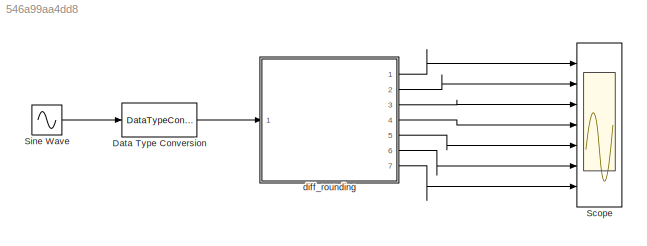
MODEL slx_546a99aa4dd8
KIND model
CONFIG AbsTol = auto
CONFIG FixedStep = auto
CONFIG MaxStep = auto
CONFIG MinStep = auto
CONFIG RelTol = 1e-3
CONFIG SampleTimeConstraint = Unconstrained
CONFIG Solver = FixedStepDiscrete
CONFIG SolverMode = SingleTasking
CONFIG SolverName = FixedStepDiscrete
CONFIG StartTime = 0.0
CONFIG StopTime = 10
BLOCK [DataTypeConversion] Data Type Conversion
  OutDataTypeStr = fixdt(1,16,12)
  RndMeth = Floor
  SaturateOnIntegerOverflow = off
BLOCK [Scope] Scope
  NumInputPorts = 7
  Ports = [7]
  ScopeSpecificationString = Simulink.scopes.TimeScopeBlockCfg('CurrentConfiguration', extmgr.ConfigurationSet(extmgr.Configuration('Core','General UI',true),extmgr.Configuration('Core','Source UI',true),extmgr.Configuration('Sources','WiredSimulink',true,'DataLoggingSaveFormat','StructureWithTime','DataLoggingDecimation','1','DataLoggingDecimateData',true),extmgr.Configuration('Visuals','Time Domain',true,'SerializedDisplays...<+6461ch>
BLOCK [Sin] Sine Wave
  Frequency = 2*pi*1
  Ports = [0, 1]
  SampleTime = 1/100
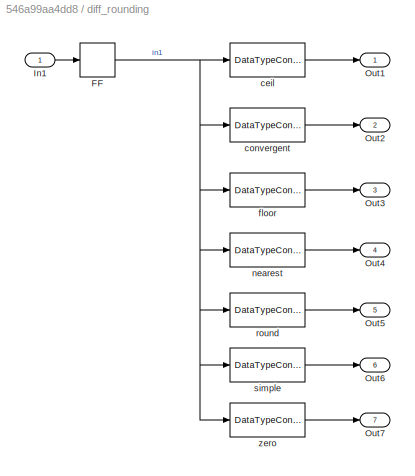
BLOCK [SubSystem] diff_rounding
  Ports = [1, 7]
  RequestExecContextInheritance = off
  Variant = off
BLOCK [Delay] diff_rounding/FF
  DelayLength = 1
  InputPortMap = u0
  Ports = [1, 1]
BLOCK [Inport] diff_rounding/In1
  IconDisplay = Port number
BLOCK [Outport] diff_rounding/Out1
  IconDisplay = Port number
BLOCK [Outport] diff_rounding/Out2
  IconDisplay = Port number
  Port = 2
BLOCK [Outport] diff_rounding/Out3
  IconDisplay = Port number
  Port = 3
BLOCK [Outport] diff_rounding/Out4
  IconDisplay = Port number
  Port = 4
BLOCK [Outport] diff_rounding/Out5
  IconDisplay = Port number
  Port = 5
BLOCK [Outport] diff_rounding/Out6
  IconDisplay = Port number
  Port = 6
BLOCK [Outport] diff_rounding/Out7
  IconDisplay = Port number
  Port = 7
BLOCK [DataTypeConversion] diff_rounding/ceil
  OutDataTypeStr = fixdt(1,14,10)
  RndMeth = Ceiling
  SaturateOnIntegerOverflow = off
BLOCK [DataTypeConversion] diff_rounding/convergent
  OutDataTypeStr = fixdt(1,14,10)
  RndMeth = Convergent
  SaturateOnIntegerOverflow = off
BLOCK [DataTypeConversion] diff_rounding/floor
  OutDataTypeStr = fixdt(1,14,10)
  RndMeth = Floor
  SaturateOnIntegerOverflow = off
BLOCK [DataTypeConversion] diff_rounding/nearest
  OutDataTypeStr = fixdt(1,14,10)
  RndMeth = Nearest
  SaturateOnIntegerOverflow = off
BLOCK [DataTypeConversion] diff_rounding/round
  OutDataTypeStr = fixdt(1,14,10)
  RndMeth = Round
  SaturateOnIntegerOverflow = off
BLOCK [DataTypeConversion] diff_rounding/simple
  OutDataTypeStr = fixdt(1,14,10)
  RndMeth = Simplest
  SaturateOnIntegerOverflow = off
BLOCK [DataTypeConversion] diff_rounding/zero
  OutDataTypeStr = fixdt(1,14,10)
  SaturateOnIntegerOverflow = off
LINE Data Type Conversion:1 -> diff_rounding:1
LINE Sine Wave:1 -> Data Type Conversion:1
NET diff_rounding/FF:1 -> diff_rounding/ceil:1, diff_rounding/convergent:1, diff_rounding/floor:1, diff_rounding/nearest:1, diff_rounding/round:1, diff_rounding/simple:1, diff_rounding/zero:1
LINE diff_rounding/In1:1 -> diff_rounding/FF:1
LINE diff_rounding/ceil:1 -> diff_rounding/Out1:1
LINE diff_rounding/convergent:1 -> diff_rounding/Out2:1
LINE diff_rounding/floor:1 -> diff_rounding/Out3:1
LINE diff_rounding/nearest:1 -> diff_rounding/Out4:1
LINE diff_rounding/round:1 -> diff_rounding/Out5:1
LINE diff_rounding/simple:1 -> diff_rounding/Out6:1
LINE diff_rounding/zero:1 -> diff_rounding/Out7:1
LINE diff_rounding:1 -> Scope:1
LINE diff_rounding:2 -> Scope:2
LINE diff_rounding:3 -> Scope:3
LINE diff_rounding:4 -> Scope:4
LINE diff_rounding:5 -> Scope:5
LINE diff_rounding:6 -> Scope:6
LINE diff_rounding:7 -> Scope:7
note: NET lines group one-source signal fan-out (src -> all destinations, sorted); 1:1 wires keep LINE
